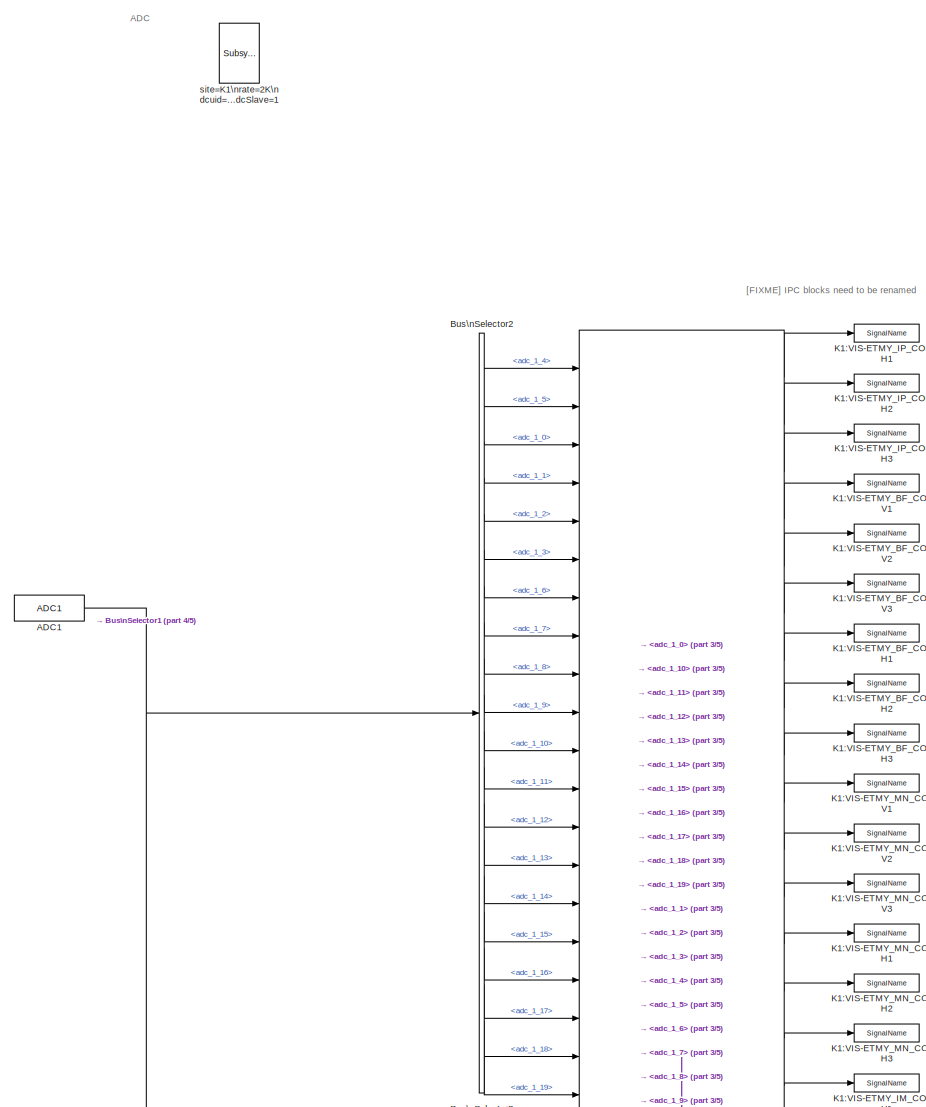
[diagram: root canvas - part 1/5, full width, top band]
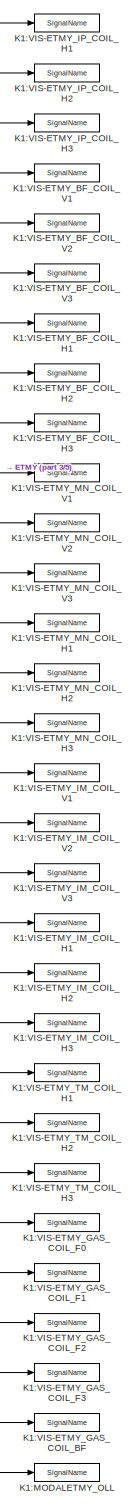
[diagram: root canvas - part 2/5, right side, full height]
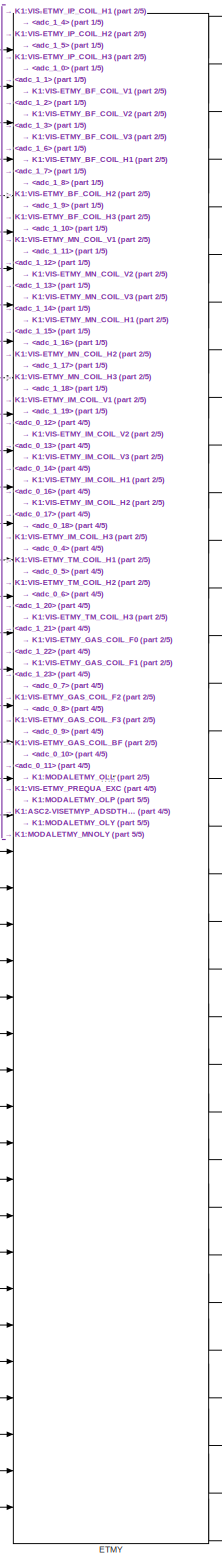
[diagram: root canvas - part 3/5, right side, full height]
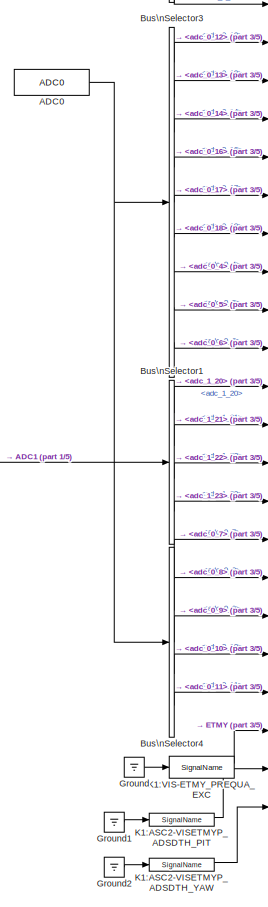
[diagram: root canvas - part 4/5, bottom center region]
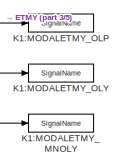
[diagram: root canvas - part 5/5, bottom right region]
MODEL k1modaletmy
KIND model
BLOCK [Reference] ADC0  REF=cdsAdcx0/ADC0
  AttributesFormatString = %<Description>\\n%<Tag>
  Description = type-GSC_16AI64SSA\ncard_num=0
  Ports = [0, 1]
  SID = 2414
  SourceBlock = cdsAdcx0/ADC0
  SourceType = SubSystem
  Tag = cdsAdc
BLOCK [Reference] ADC1  REF=cdsAdcx1/ADC1
  AttributesFormatString = %<Description>\\n%<Tag>
  Description = type-GSC_16AI64SSA\ncard_num=1
  Ports = [0, 1]
  SID = 2415
  SourceBlock = cdsAdcx1/ADC1
  SourceType = SubSystem
  Tag = cdsAdc
BLOCK [BusSelector] Bus\nSelector1
  OutputSignals = adc_1_20,adc_1_21,adc_1_22,adc_1_23
  Ports = [1, 4]
  SID = 2416
BLOCK [BusSelector] Bus\nSelector2
  OutputSignals = adc_1_4,adc_1_5,adc_1_0,adc_1_1,adc_1_2,adc_1_3,adc_1_6,adc_1_7,adc_1_8,adc_1_9,adc_1_10,adc_1_11,adc_1_12,adc_1_13,adc_1_14,adc_1_15,adc_1_16,adc_1_17,adc_1_18,adc_1_19
  Ports = [1, 20]
  SID = 2417
BLOCK [BusSelector] Bus\nSelector3
  OutputSignals = adc_0_12,adc_0_13,adc_0_14,adc_0_16,adc_0_17,adc_0_18,adc_0_4,adc_0_5,adc_0_6
  Ports = [1, 9]
  SID = 2418
BLOCK [BusSelector] Bus\nSelector4
  OutputSignals = adc_0_7,adc_0_8,adc_0_9,adc_0_10,adc_0_11
  Ports = [1, 5]
  SID = 2419
BLOCK [Reference] ETMY  REF=VISMODAL_MASTER/ITMY
  Ports = [41, 33]
  SID = 3965
  SourceBlock = VISMODAL_MASTER/ITMY
  SourceType = SubSystem
BLOCK [Ground] Ground
  SID = 2420
BLOCK [Ground] Ground1
  SID = 3968
BLOCK [Ground] Ground2
  SID = 3969
BLOCK [Reference] K1:ASC2-VISETMYP_ADSDTH_PIT  REF=cdsIPCx/SignalName
  AttributesFormatString = %<Description>\\n%<Tag>
  Description = card=1
  Ports = [1, 2]
  SID = 3966
  SourceBlock = cdsIPCx/SignalName
  SourceType = SubSystem
  Tag = cdsIPCx_RFM
BLOCK [Reference] K1:ASC2-VISETMYP_ADSDTH_YAW  REF=cdsIPCx/SignalName
  AttributesFormatString = %<Description>\\n%<Tag>
  Description = card=1
  Ports = [1, 2]
  SID = 3967
  SourceBlock = cdsIPCx/SignalName
  SourceType = SubSystem
  Tag = cdsIPCx_RFM
BLOCK [Reference] K1:MODALETMY_MNOLY  REF=cdsIPCx/SignalName
  AttributesFormatString = %<Tag>
  Description = Inter-Process Communication via Shared memory.
  Ports = [1, 2]
  SID = 3973
  SourceBlock = cdsIPCx/SignalName
  SourceType = SubSystem
  Tag = cdsIPCx_SHMEM
BLOCK [Reference] K1:MODALETMY_OLL  REF=cdsIPCx/SignalName
  AttributesFormatString = %<Tag>
  Description = Inter-Process Communication via Shared memory.
  Ports = [1, 2]
  SID = 3970
  SourceBlock = cdsIPCx/SignalName
  SourceType = SubSystem
  Tag = cdsIPCx_SHMEM
BLOCK [Reference] K1:MODALETMY_OLP  REF=cdsIPCx/SignalName
  AttributesFormatString = %<Tag>
  Description = Inter-Process Communication via Shared memory.
  Ports = [1, 2]
  SID = 3971
  SourceBlock = cdsIPCx/SignalName
  SourceType = SubSystem
  Tag = cdsIPCx_SHMEM
BLOCK [Reference] K1:MODALETMY_OLY  REF=cdsIPCx/SignalName
  AttributesFormatString = %<Tag>
  Description = Inter-Process Communication via Shared memory.
  Ports = [1, 2]
  SID = 3972
  SourceBlock = cdsIPCx/SignalName
  SourceType = SubSystem
  Tag = cdsIPCx_SHMEM
BLOCK [Reference] K1:VIS-ETMY_BF_COIL_H1  REF=cdsIPCx/SignalName
  AttributesFormatString = %<Tag>
  Description = Inter-Process Communication via Shared memory.
  Ports = [1, 2]
  SID = 3933
  SourceBlock = cdsIPCx/SignalName
  SourceType = SubSystem
  Tag = cdsIPCx_SHMEM
BLOCK [Reference] K1:VIS-ETMY_BF_COIL_H2  REF=cdsIPCx/SignalName
  AttributesFormatString = %<Tag>
  Description = Inter-Process Communication via Shared memory.
  Ports = [1, 2]
  SID = 3934
  SourceBlock = cdsIPCx/SignalName
  SourceType = SubSystem
  Tag = cdsIPCx_SHMEM
BLOCK [Reference] K1:VIS-ETMY_BF_COIL_H3  REF=cdsIPCx/SignalName
  AttributesFormatString = %<Tag>
  Description = Inter-Process Communication via Shared memory.
  Ports = [1, 2]
  SID = 3935
  SourceBlock = cdsIPCx/SignalName
  SourceType = SubSystem
  Tag = cdsIPCx_SHMEM
BLOCK [Reference] K1:VIS-ETMY_BF_COIL_V1  REF=cdsIPCx/SignalName
  AttributesFormatString = %<Tag>
  Description = Inter-Process Communication via Shared memory.
  Ports = [1, 2]
  SID = 3936
  SourceBlock = cdsIPCx/SignalName
  SourceType = SubSystem
  Tag = cdsIPCx_SHMEM
BLOCK [Reference] K1:VIS-ETMY_BF_COIL_V2  REF=cdsIPCx/SignalName
  AttributesFormatString = %<Tag>
  Description = Inter-Process Communication via Shared memory.
  Ports = [1, 2]
  SID = 3937
  SourceBlock = cdsIPCx/SignalName
  SourceType = SubSystem
  Tag = cdsIPCx_SHMEM
BLOCK [Reference] K1:VIS-ETMY_BF_COIL_V3  REF=cdsIPCx/SignalName
  AttributesFormatString = %<Tag>
  Description = Inter-Process Communication via Shared memory.
  Ports = [1, 2]
  SID = 3938
  SourceBlock = cdsIPCx/SignalName
  SourceType = SubSystem
  Tag = cdsIPCx_SHMEM
BLOCK [Reference] K1:VIS-ETMY_GAS_COIL_BF  REF=cdsIPCx/SignalName
  AttributesFormatString = %<Tag>
  Description = Inter-Process Communication via Shared memory.
  Ports = [1, 2]
  SID = 3939
  SourceBlock = cdsIPCx/SignalName
  SourceType = SubSystem
  Tag = cdsIPCx_SHMEM
BLOCK [Reference] K1:VIS-ETMY_GAS_COIL_F0  REF=cdsIPCx/SignalName
  AttributesFormatString = %<Tag>
  Description = Inter-Process Communication via Shared memory.
  Ports = [1, 2]
  SID = 3940
  SourceBlock = cdsIPCx/SignalName
  SourceType = SubSystem
  Tag = cdsIPCx_SHMEM
BLOCK [Reference] K1:VIS-ETMY_GAS_COIL_F1  REF=cdsIPCx/SignalName
  AttributesFormatString = %<Tag>
  Description = Inter-Process Communication via Shared memory.
  Ports = [1, 2]
  SID = 3941
  SourceBlock = cdsIPCx/SignalName
  SourceType = SubSystem
  Tag = cdsIPCx_SHMEM
BLOCK [Reference] K1:VIS-ETMY_GAS_COIL_F2  REF=cdsIPCx/SignalName
  AttributesFormatString = %<Tag>
  Description = Inter-Process Communication via Shared memory.
  Ports = [1, 2]
  SID = 3942
  SourceBlock = cdsIPCx/SignalName
  SourceType = SubSystem
  Tag = cdsIPCx_SHMEM
BLOCK [Reference] K1:VIS-ETMY_GAS_COIL_F3  REF=cdsIPCx/SignalName
  AttributesFormatString = %<Tag>
  Description = Inter-Process Communication via Shared memory.
  Ports = [1, 2]
  SID = 3943
  SourceBlock = cdsIPCx/SignalName
  SourceType = SubSystem
  Tag = cdsIPCx_SHMEM
BLOCK [Reference] K1:VIS-ETMY_IM_COIL_H1  REF=cdsIPCx/SignalName
  AttributesFormatString = %<Tag>
  Description = Inter-Process Communication via Shared memory.
  Ports = [1, 2]
  SID = 3944
  SourceBlock = cdsIPCx/SignalName
  SourceType = SubSystem
  Tag = cdsIPCx_SHMEM
BLOCK [Reference] K1:VIS-ETMY_IM_COIL_H2  REF=cdsIPCx/SignalName
  AttributesFormatString = %<Tag>
  Description = Inter-Process Communication via Shared memory.
  Ports = [1, 2]
  SID = 3945
  SourceBlock = cdsIPCx/SignalName
  SourceType = SubSystem
  Tag = cdsIPCx_SHMEM
BLOCK [Reference] K1:VIS-ETMY_IM_COIL_H3  REF=cdsIPCx/SignalName
  AttributesFormatString = %<Tag>
  Description = Inter-Process Communication via Shared memory.
  Ports = [1, 2]
  SID = 3946
  SourceBlock = cdsIPCx/SignalName
  SourceType = SubSystem
  Tag = cdsIPCx_SHMEM
BLOCK [Reference] K1:VIS-ETMY_IM_COIL_V1  REF=cdsIPCx/SignalName
  AttributesFormatString = %<Tag>
  Description = Inter-Process Communication via Shared memory.
  Ports = [1, 2]
  SID = 3947
  SourceBlock = cdsIPCx/SignalName
  SourceType = SubSystem
  Tag = cdsIPCx_SHMEM
BLOCK [Reference] K1:VIS-ETMY_IM_COIL_V2  REF=cdsIPCx/SignalName
  AttributesFormatString = %<Tag>
  Description = Inter-Process Communication via Shared memory.
  Ports = [1, 2]
  SID = 3948
  SourceBlock = cdsIPCx/SignalName
  SourceType = SubSystem
  Tag = cdsIPCx_SHMEM
BLOCK [Reference] K1:VIS-ETMY_IM_COIL_V3  REF=cdsIPCx/SignalName
  AttributesFormatString = %<Tag>
  Description = Inter-Process Communication via Shared memory.
  Ports = [1, 2]
  SID = 3949
  SourceBlock = cdsIPCx/SignalName
  SourceType = SubSystem
  Tag = cdsIPCx_SHMEM
BLOCK [Reference] K1:VIS-ETMY_IP_COIL_H1  REF=cdsIPCx/SignalName
  AttributesFormatString = %<Tag>
  Description = Inter-Process Communication via Shared memory.
  Ports = [1, 2]
  SID = 3950
  SourceBlock = cdsIPCx/SignalName
  SourceType = SubSystem
  Tag = cdsIPCx_SHMEM
BLOCK [Reference] K1:VIS-ETMY_IP_COIL_H2  REF=cdsIPCx/SignalName
  AttributesFormatString = %<Tag>
  Description = Inter-Process Communication via Shared memory.
  Ports = [1, 2]
  SID = 3951
  SourceBlock = cdsIPCx/SignalName
  SourceType = SubSystem
  Tag = cdsIPCx_SHMEM
BLOCK [Reference] K1:VIS-ETMY_IP_COIL_H3  REF=cdsIPCx/SignalName
  AttributesFormatString = %<Tag>
  Description = Inter-Process Communication via Shared memory.
  Ports = [1, 2]
  SID = 3952
  SourceBlock = cdsIPCx/SignalName
  SourceType = SubSystem
  Tag = cdsIPCx_SHMEM
BLOCK [Reference] K1:VIS-ETMY_MN_COIL_H1  REF=cdsIPCx/SignalName
  AttributesFormatString = %<Tag>
  Description = Inter-Process Communication via Shared memory.
  Ports = [1, 2]
  SID = 3953
  SourceBlock = cdsIPCx/SignalName
  SourceType = SubSystem
  Tag = cdsIPCx_SHMEM
BLOCK [Reference] K1:VIS-ETMY_MN_COIL_H2  REF=cdsIPCx/SignalName
  AttributesFormatString = %<Tag>
  Description = Inter-Process Communication via Shared memory.
  Ports = [1, 2]
  SID = 3954
  SourceBlock = cdsIPCx/SignalName
  SourceType = SubSystem
  Tag = cdsIPCx_SHMEM
BLOCK [Reference] K1:VIS-ETMY_MN_COIL_H3  REF=cdsIPCx/SignalName
  AttributesFormatString = %<Tag>
  Description = Inter-Process Communication via Shared memory.
  Ports = [1, 2]
  SID = 3955
  SourceBlock = cdsIPCx/SignalName
  SourceType = SubSystem
  Tag = cdsIPCx_SHMEM
BLOCK [Reference] K1:VIS-ETMY_MN_COIL_V1  REF=cdsIPCx/SignalName
  AttributesFormatString = %<Tag>
  Description = Inter-Process Communication via Shared memory.
  Ports = [1, 2]
  SID = 3956
  SourceBlock = cdsIPCx/SignalName
  SourceType = SubSystem
  Tag = cdsIPCx_SHMEM
BLOCK [Reference] K1:VIS-ETMY_MN_COIL_V2  REF=cdsIPCx/SignalName
  AttributesFormatString = %<Tag>
  Description = Inter-Process Communication via Shared memory.
  Ports = [1, 2]
  SID = 3957
  SourceBlock = cdsIPCx/SignalName
  SourceType = SubSystem
  Tag = cdsIPCx_SHMEM
BLOCK [Reference] K1:VIS-ETMY_MN_COIL_V3  REF=cdsIPCx/SignalName
  AttributesFormatString = %<Tag>
  Description = Inter-Process Communication via Shared memory.
  Ports = [1, 2]
  SID = 3958
  SourceBlock = cdsIPCx/SignalName
  SourceType = SubSystem
  Tag = cdsIPCx_SHMEM
BLOCK [Reference] K1:VIS-ETMY_PREQUA_EXC  REF=cdsIPCx/SignalName
  AttributesFormatString = %<Tag>
  Description = Inter-Process Communication via Shared memory.
  Ports = [1, 2]
  SID = 3959
  SourceBlock = cdsIPCx/SignalName
  SourceType = SubSystem
  Tag = cdsIPCx_SHMEM
BLOCK [Reference] K1:VIS-ETMY_TM_COIL_H1  REF=cdsIPCx/SignalName
  AttributesFormatString = %<Tag>
  Description = Inter-Process Communication via Shared memory.
  Ports = [1, 2]
  SID = 3960
  SourceBlock = cdsIPCx/SignalName
  SourceType = SubSystem
  Tag = cdsIPCx_SHMEM
BLOCK [Reference] K1:VIS-ETMY_TM_COIL_H2  REF=cdsIPCx/SignalName
  AttributesFormatString = %<Tag>
  Description = Inter-Process Communication via Shared memory.
  Ports = [1, 2]
  SID = 3961
  SourceBlock = cdsIPCx/SignalName
  SourceType = SubSystem
  Tag = cdsIPCx_SHMEM
BLOCK [Reference] K1:VIS-ETMY_TM_COIL_H3  REF=cdsIPCx/SignalName
  AttributesFormatString = %<Tag>
  Description = Inter-Process Communication via Shared memory.
  Ports = [1, 2]
  SID = 3962
  SourceBlock = cdsIPCx/SignalName
  SourceType = SubSystem
  Tag = cdsIPCx_SHMEM
BLOCK [Reference] site=K1\nrate=2K\ndcuid=110\nhost=k1ey1\nspecific_cpu=5\nadcSlave=1  REF=cdsParameters/Subsystem
  AttributesFormatString = %<Tag>
  Description = Purpose:                                                                                                                                                                                                                                \nProvide system parameters to the FE code generator to properly configure the generated EPICS names, rep rate of the FE controller, and the Data Acquisition node ID fo...<+2934ch>
  Ports = []
  SID = 3
  SourceBlock = cdsParameters/Subsystem
  SourceType = SubSystem
  Tag = cdsParameters
ANNOTATION (root): \n \n ADC
ANNOTATION (root): \n \n [FIXME] IPC blocks need to be renamed
NET ADC0:1 -> Bus\nSelector3:1, Bus\nSelector4:1
NET ADC1:1 -> Bus\nSelector1:1, Bus\nSelector2:1
LINE Bus\nSelector1:1 -> ETMY:30
LINE Bus\nSelector1:2 -> ETMY:31
LINE Bus\nSelector1:3 -> ETMY:32
LINE Bus\nSelector1:4 -> ETMY:33
LINE Bus\nSelector2:1 -> ETMY:1
LINE Bus\nSelector2:10 -> ETMY:10
LINE Bus\nSelector2:11 -> ETMY:11
LINE Bus\nSelector2:12 -> ETMY:12
LINE Bus\nSelector2:13 -> ETMY:13
LINE Bus\nSelector2:14 -> ETMY:14
LINE Bus\nSelector2:15 -> ETMY:15
LINE Bus\nSelector2:16 -> ETMY:16
LINE Bus\nSelector2:17 -> ETMY:17
LINE Bus\nSelector2:18 -> ETMY:18
LINE Bus\nSelector2:19 -> ETMY:19
LINE Bus\nSelector2:2 -> ETMY:2
LINE Bus\nSelector2:20 -> ETMY:20
LINE Bus\nSelector2:3 -> ETMY:3
LINE Bus\nSelector2:4 -> ETMY:4
LINE Bus\nSelector2:5 -> ETMY:5
LINE Bus\nSelector2:6 -> ETMY:6
LINE Bus\nSelector2:7 -> ETMY:7
LINE Bus\nSelector2:8 -> ETMY:8
LINE Bus\nSelector2:9 -> ETMY:9
LINE Bus\nSelector3:1 -> ETMY:21
LINE Bus\nSelector3:2 -> ETMY:22
LINE Bus\nSelector3:3 -> ETMY:23
LINE Bus\nSelector3:4 -> ETMY:24
LINE Bus\nSelector3:5 -> ETMY:25
LINE Bus\nSelector3:6 -> ETMY:26
LINE Bus\nSelector3:7 -> ETMY:27
LINE Bus\nSelector3:8 -> ETMY:28
LINE Bus\nSelector3:9 -> ETMY:29
LINE Bus\nSelector4:1 -> ETMY:34
LINE Bus\nSelector4:2 -> ETMY:35
LINE Bus\nSelector4:3 -> ETMY:36
LINE Bus\nSelector4:4 -> ETMY:37
LINE Bus\nSelector4:5 -> ETMY:38
LINE ETMY:1 -> K1:VIS-ETMY_IP_COIL_H1:1
LINE ETMY:10 -> K1:VIS-ETMY_MN_COIL_V1:1
LINE ETMY:11 -> K1:VIS-ETMY_MN_COIL_V2:1
LINE ETMY:12 -> K1:VIS-ETMY_MN_COIL_V3:1
LINE ETMY:13 -> K1:VIS-ETMY_MN_COIL_H1:1
LINE ETMY:14 -> K1:VIS-ETMY_MN_COIL_H2:1
LINE ETMY:15 -> K1:VIS-ETMY_MN_COIL_H3:1
LINE ETMY:16 -> K1:VIS-ETMY_IM_COIL_V1:1
LINE ETMY:17 -> K1:VIS-ETMY_IM_COIL_V2:1
LINE ETMY:18 -> K1:VIS-ETMY_IM_COIL_V3:1
LINE ETMY:19 -> K1:VIS-ETMY_IM_COIL_H1:1
LINE ETMY:2 -> K1:VIS-ETMY_IP_COIL_H2:1
LINE ETMY:20 -> K1:VIS-ETMY_IM_COIL_H2:1
LINE ETMY:21 -> K1:VIS-ETMY_IM_COIL_H3:1
LINE ETMY:22 -> K1:VIS-ETMY_TM_COIL_H1:1
LINE ETMY:23 -> K1:VIS-ETMY_TM_COIL_H2:1
LINE ETMY:24 -> K1:VIS-ETMY_TM_COIL_H3:1
LINE ETMY:25 -> K1:VIS-ETMY_GAS_COIL_F0:1
LINE ETMY:26 -> K1:VIS-ETMY_GAS_COIL_F1:1
LINE ETMY:27 -> K1:VIS-ETMY_GAS_COIL_F2:1
LINE ETMY:28 -> K1:VIS-ETMY_GAS_COIL_F3:1
LINE ETMY:29 -> K1:VIS-ETMY_GAS_COIL_BF:1
LINE ETMY:3 -> K1:VIS-ETMY_IP_COIL_H3:1
LINE ETMY:30 -> K1:MODALETMY_OLL:1
LINE ETMY:31 -> K1:MODALETMY_OLP:1
LINE ETMY:32 -> K1:MODALETMY_OLY:1
LINE ETMY:33 -> K1:MODALETMY_MNOLY:1
LINE ETMY:4 -> K1:VIS-ETMY_BF_COIL_V1:1
LINE ETMY:5 -> K1:VIS-ETMY_BF_COIL_V2:1
LINE ETMY:6 -> K1:VIS-ETMY_BF_COIL_V3:1
LINE ETMY:7 -> K1:VIS-ETMY_BF_COIL_H1:1
LINE ETMY:8 -> K1:VIS-ETMY_BF_COIL_H2:1
LINE ETMY:9 -> K1:VIS-ETMY_BF_COIL_H3:1
LINE Ground1:1 -> K1:ASC2-VISETMYP_ADSDTH_PIT:1
LINE Ground2:1 -> K1:ASC2-VISETMYP_ADSDTH_YAW:1
LINE Ground:1 -> K1:VIS-ETMY_PREQUA_EXC:1
LINE K1:ASC2-VISETMYP_ADSDTH_PIT:1 -> ETMY:40
LINE K1:ASC2-VISETMYP_ADSDTH_YAW:1 -> ETMY:41
LINE K1:VIS-ETMY_PREQUA_EXC:1 -> ETMY:39
note: NET lines group one-source signal fan-out (src -> all destinations, sorted); 1:1 wires keep LINE
